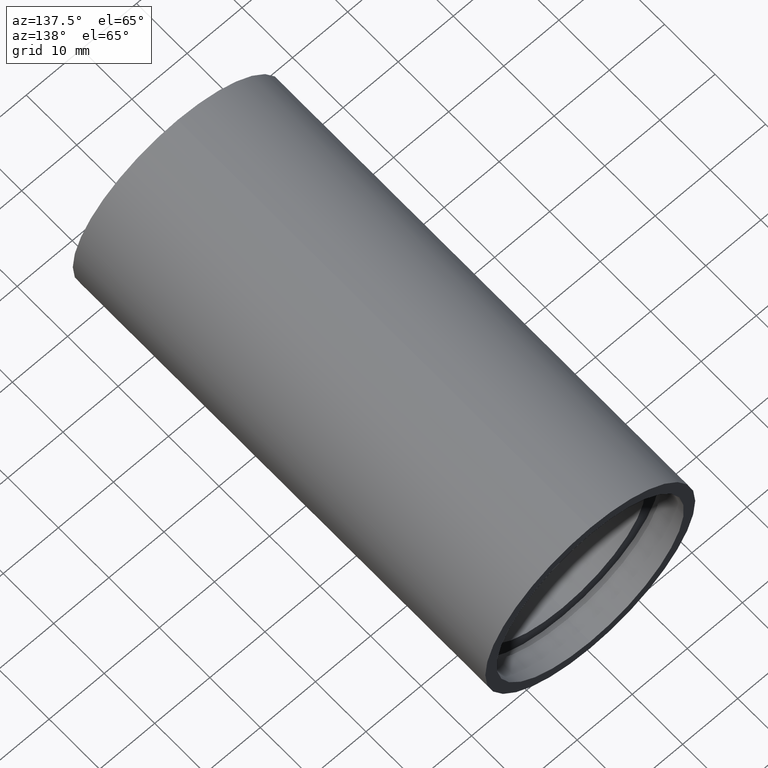
[diagram: clean part render]
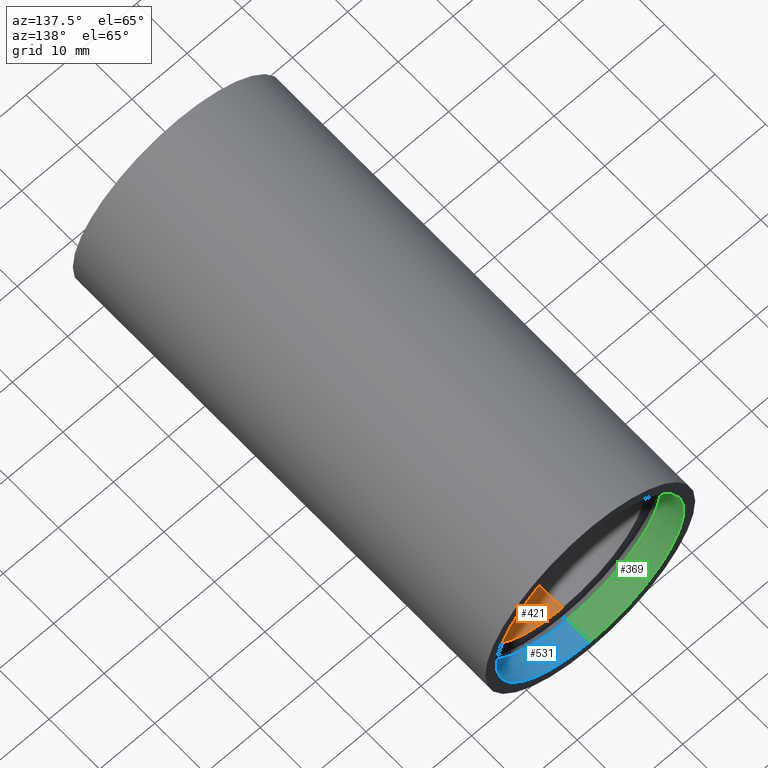
[diagram: same view with three faces highlighted in distinct colors, each labeled with its STEP entity id]
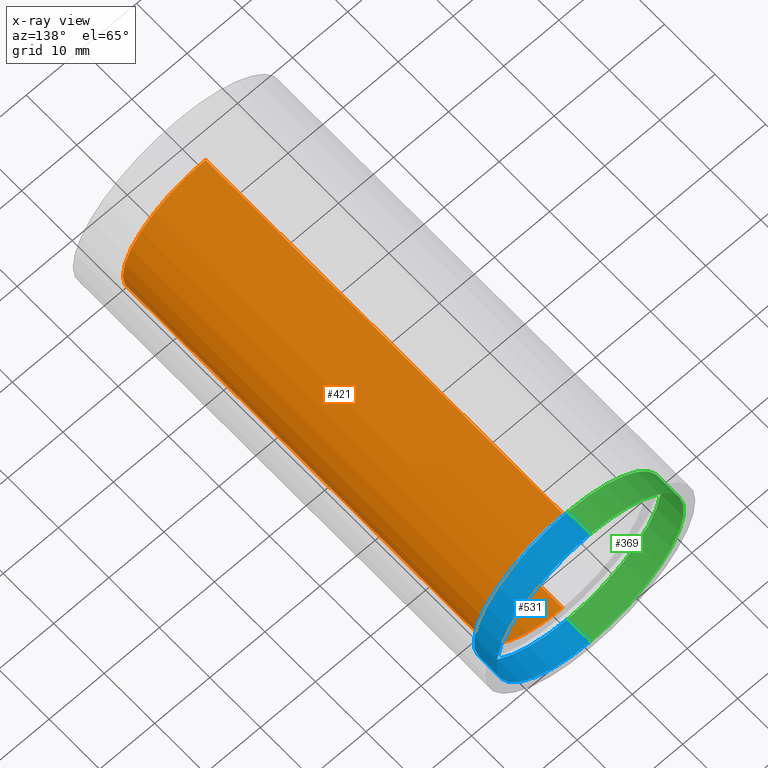
[diagram: x-ray of the same camera — body ghosted, the three highlighted faces saturated]
A machine part, auxiliary view with three faces highlighted in distinct colors.
The next image is the same camera in x-ray (body ghosted, the three faces saturated) — at least one of them is partly hidden behind the body in this view.
Their STEP definitions:

[orange] entity #421 — the highlighted cylindrical surface (partial cylindrical patch) has radius 15 mm, axis along (-0, 1, -0).
#4 = EDGE_CURVE ( 'NONE', #95, #38, #27, .T. ) ;
#24 = AXIS2_PLACEMENT_3D ( 'NONE', #261, #545, #540 ) ;
#26 = CARTESIAN_POINT ( 'NONE',  ( 1.836970198721032000E-015, 5.499999999999976900, -15.00000000000001800 ) ) ;
#27 = LINE ( 'NONE', #420, #32 ) ;
#29 = CARTESIAN_POINT ( 'NONE',  ( 0.0000000000000000000, 161.3761669434274500, 0.0000000000000000000 ) ) ;
#32 = VECTOR ( 'NONE', #619, 1000.000000000000000 ) ;
#38 = VERTEX_POINT ( 'NONE', #178 ) ;
#58 = CARTESIAN_POINT ( 'NONE',  ( 0.0000000000000000000, 5.499999999999976900, 15.00000000000001800 ) ) ;
#77 = AXIS2_PLACEMENT_3D ( 'NONE', #227, #457, #222 ) ;
#95 = VERTEX_POINT ( 'NONE', #58 ) ;
#120 = EDGE_LOOP ( 'NONE', ( #485, #350, #318, #296 ) ) ;
#144 = AXIS2_PLACEMENT_3D ( 'NONE', #29, #215, #560 ) ;
#171 = FACE_OUTER_BOUND ( 'NONE', #120, .T. ) ;
#178 = CARTESIAN_POINT ( 'NONE',  ( 0.0000000000000000000, 76.19999999999998900, 15.00000000000002000 ) ) ;
#196 = EDGE_CURVE ( 'NONE', #416, #516, #392, .T. ) ;
#215 = DIRECTION ( 'NONE',  ( -0.0000000000000000000, 1.000000000000000000, -0.0000000000000000000 ) ) ;
#222 = DIRECTION ( 'NONE',  ( 0.0000000000000000000, 0.0000000000000000000, 1.000000000000000000 ) ) ;
#227 = CARTESIAN_POINT ( 'NONE',  ( 0.0000000000000000000, 5.499999999999976900, 0.0000000000000000000 ) ) ;
#246 = DIRECTION ( 'NONE',  ( -0.0000000000000000000, 1.000000000000000000, -0.0000000000000000000 ) ) ;
#251 = EDGE_CURVE ( 'NONE', #38, #516, #581, .T. ) ;
#261 = CARTESIAN_POINT ( 'NONE',  ( 0.0000000000000000000, 76.19999999999998900, 0.0000000000000000000 ) ) ;
#296 = ORIENTED_EDGE ( 'NONE', *, *, #251, .T. ) ;
#318 = ORIENTED_EDGE ( 'NONE', *, *, #4, .T. ) ;
#350 = ORIENTED_EDGE ( 'NONE', *, *, #503, .F. ) ;
#373 = CIRCLE ( 'NONE', #77, 15.00000000000001800 ) ;
#392 = LINE ( 'NONE', #533, #504 ) ;
#416 = VERTEX_POINT ( 'NONE', #26 ) ;
#419 = CARTESIAN_POINT ( 'NONE',  ( 1.836970198721032300E-015, 76.19999999999998900, -15.00000000000002000 ) ) ;
#420 = CARTESIAN_POINT ( 'NONE',  ( 0.0000000000000000000, 161.3761669434274500, 15.00000000000002000 ) ) ;
#421 = ADVANCED_FACE ( 'NONE', ( #171 ), #555, .F. ) ;
#457 = DIRECTION ( 'NONE',  ( -0.0000000000000000000, 1.000000000000000000, -0.0000000000000000000 ) ) ;
#485 = ORIENTED_EDGE ( 'NONE', *, *, #196, .F. ) ;
#503 = EDGE_CURVE ( 'NONE', #95, #416, #373, .T. ) ;
#504 = VECTOR ( 'NONE', #246, 1000.000000000000000 ) ;
#516 = VERTEX_POINT ( 'NONE', #419 ) ;
#533 = CARTESIAN_POINT ( 'NONE',  ( 1.836970198721032300E-015, 161.3761669434274500, -15.00000000000002000 ) ) ;
#540 = DIRECTION ( 'NONE',  ( 0.0000000000000000000, 0.0000000000000000000, 1.000000000000000000 ) ) ;
#545 = DIRECTION ( 'NONE',  ( -0.0000000000000000000, 1.000000000000000000, -0.0000000000000000000 ) ) ;
#555 = CYLINDRICAL_SURFACE ( 'NONE', #144, 15.00000000000002000 ) ;
#560 = DIRECTION ( 'NONE',  ( 0.0000000000000000000, 0.0000000000000000000, 1.000000000000000000 ) ) ;
#581 = CIRCLE ( 'NONE', #24, 15.00000000000002000 ) ;
#619 = DIRECTION ( 'NONE',  ( -0.0000000000000000000, 1.000000000000000000, -0.0000000000000000000 ) ) ;

[blue] entity #531 — the highlighted cylindrical surface (partial cylindrical patch) has radius 17 mm, axis along (-0, 1, -0).
#44 = DIRECTION ( 'NONE',  ( 0.0000000000000000000, 0.0000000000000000000, 1.000000000000000000 ) ) ;
#78 = CYLINDRICAL_SURFACE ( 'NONE', #535, 17.00000000000002100 ) ;
#79 = DIRECTION ( 'NONE',  ( -0.0000000000000000000, 1.000000000000000000, -0.0000000000000000000 ) ) ;
#80 = VECTOR ( 'NONE', #132, 1000.000000000000000 ) ;
#97 = EDGE_CURVE ( 'NONE', #437, #486, #109, .T. ) ;
#109 = LINE ( 'NONE', #339, #474 ) ;
#110 = DIRECTION ( 'NONE',  ( -0.0000000000000000000, 1.000000000000000000, -0.0000000000000000000 ) ) ;
#126 = CARTESIAN_POINT ( 'NONE',  ( 0.0000000000000000000, 81.69999999999998900, 17.00000000000002100 ) ) ;
#132 = DIRECTION ( 'NONE',  ( -0.0000000000000000000, 1.000000000000000000, -0.0000000000000000000 ) ) ;
#143 = CIRCLE ( 'NONE', #462, 17.00000000000002100 ) ;
#153 = ORIENTED_EDGE ( 'NONE', *, *, #621, .F. ) ;
#166 = ORIENTED_EDGE ( 'NONE', *, *, #97, .T. ) ;
#200 = CARTESIAN_POINT ( 'NONE',  ( 2.081899558550503000E-015, 81.69999999999998900, -17.00000000000002100 ) ) ;
#202 = ORIENTED_EDGE ( 'NONE', *, *, #494, .T. ) ;
#236 = CARTESIAN_POINT ( 'NONE',  ( 0.0000000000000000000, 161.3761669434274500, 0.0000000000000000000 ) ) ;
#243 = FACE_OUTER_BOUND ( 'NONE', #362, .T. ) ;
#248 = VERTEX_POINT ( 'NONE', #200 ) ;
#260 = CARTESIAN_POINT ( 'NONE',  ( 0.0000000000000000000, 77.19999999999998900, 0.0000000000000000000 ) ) ;
#339 = CARTESIAN_POINT ( 'NONE',  ( 0.0000000000000000000, 161.3761669434274500, 17.00000000000002100 ) ) ;
#353 = DIRECTION ( 'NONE',  ( 0.0000000000000000000, 0.0000000000000000000, 1.000000000000000000 ) ) ;
#362 = EDGE_LOOP ( 'NONE', ( #611, #153, #166, #202 ) ) ;
#412 = CARTESIAN_POINT ( 'NONE',  ( 0.0000000000000000000, 77.19999999999998900, 17.00000000000002100 ) ) ;
#432 = CIRCLE ( 'NONE', #511, 17.00000000000002100 ) ;
#437 = VERTEX_POINT ( 'NONE', #412 ) ;
#459 = VERTEX_POINT ( 'NONE', #461 ) ;
#461 = CARTESIAN_POINT ( 'NONE',  ( 2.081899558550503000E-015, 77.19999999999998900, -17.00000000000002100 ) ) ;
#462 = AXIS2_PLACEMENT_3D ( 'NONE', #518, #79, #463 ) ;
#463 = DIRECTION ( 'NONE',  ( 0.0000000000000000000, 0.0000000000000000000, 1.000000000000000000 ) ) ;
#474 = VECTOR ( 'NONE', #480, 1000.000000000000000 ) ;
#480 = DIRECTION ( 'NONE',  ( -0.0000000000000000000, 1.000000000000000000, -0.0000000000000000000 ) ) ;
#482 = EDGE_CURVE ( 'NONE', #459, #248, #537, .T. ) ;
#486 = VERTEX_POINT ( 'NONE', #126 ) ;
#494 = EDGE_CURVE ( 'NONE', #486, #248, #143, .T. ) ;
#511 = AXIS2_PLACEMENT_3D ( 'NONE', #260, #110, #353 ) ;
#513 = CARTESIAN_POINT ( 'NONE',  ( 2.081899558550503000E-015, 161.3761669434274500, -17.00000000000002100 ) ) ;
#518 = CARTESIAN_POINT ( 'NONE',  ( 0.0000000000000000000, 81.69999999999998900, 0.0000000000000000000 ) ) ;
#527 = DIRECTION ( 'NONE',  ( -0.0000000000000000000, 1.000000000000000000, -0.0000000000000000000 ) ) ;
#531 = ADVANCED_FACE ( 'NONE', ( #243 ), #78, .F. ) ;
#535 = AXIS2_PLACEMENT_3D ( 'NONE', #236, #527, #44 ) ;
#537 = LINE ( 'NONE', #513, #80 ) ;
#611 = ORIENTED_EDGE ( 'NONE', *, *, #482, .F. ) ;
#621 = EDGE_CURVE ( 'NONE', #437, #459, #432, .T. ) ;

[green] entity #369 — the highlighted cylindrical surface (partial cylindrical patch) has radius 17 mm, axis along (-0, 1, -0).
#76 = EDGE_LOOP ( 'NONE', ( #265, #617, #324, #214 ) ) ;
#80 = VECTOR ( 'NONE', #132, 1000.000000000000000 ) ;
#97 = EDGE_CURVE ( 'NONE', #437, #486, #109, .T. ) ;
#109 = LINE ( 'NONE', #339, #474 ) ;
#116 = AXIS2_PLACEMENT_3D ( 'NONE', #161, #490, #342 ) ;
#126 = CARTESIAN_POINT ( 'NONE',  ( 0.0000000000000000000, 81.69999999999998900, 17.00000000000002100 ) ) ;
#132 = DIRECTION ( 'NONE',  ( -0.0000000000000000000, 1.000000000000000000, -0.0000000000000000000 ) ) ;
#161 = CARTESIAN_POINT ( 'NONE',  ( 0.0000000000000000000, 81.69999999999998900, 0.0000000000000000000 ) ) ;
#200 = CARTESIAN_POINT ( 'NONE',  ( 2.081899558550503000E-015, 81.69999999999998900, -17.00000000000002100 ) ) ;
#214 = ORIENTED_EDGE ( 'NONE', *, *, #97, .F. ) ;
#248 = VERTEX_POINT ( 'NONE', #200 ) ;
#264 = CIRCLE ( 'NONE', #116, 17.00000000000002100 ) ;
#265 = ORIENTED_EDGE ( 'NONE', *, *, #418, .F. ) ;
#293 = EDGE_CURVE ( 'NONE', #248, #486, #264, .T. ) ;
#310 = DIRECTION ( 'NONE',  ( 0.0000000000000000000, 0.0000000000000000000, 1.000000000000000000 ) ) ;
#312 = DIRECTION ( 'NONE',  ( -0.0000000000000000000, 1.000000000000000000, -0.0000000000000000000 ) ) ;
#324 = ORIENTED_EDGE ( 'NONE', *, *, #293, .T. ) ;
#338 = AXIS2_PLACEMENT_3D ( 'NONE', #603, #312, #556 ) ;
#339 = CARTESIAN_POINT ( 'NONE',  ( 0.0000000000000000000, 161.3761669434274500, 17.00000000000002100 ) ) ;
#342 = DIRECTION ( 'NONE',  ( 0.0000000000000000000, 0.0000000000000000000, 1.000000000000000000 ) ) ;
#367 = AXIS2_PLACEMENT_3D ( 'NONE', #563, #453, #310 ) ;
#369 = ADVANCED_FACE ( 'NONE', ( #570 ), #495, .F. ) ;
#412 = CARTESIAN_POINT ( 'NONE',  ( 0.0000000000000000000, 77.19999999999998900, 17.00000000000002100 ) ) ;
#418 = EDGE_CURVE ( 'NONE', #459, #437, #564, .T. ) ;
#437 = VERTEX_POINT ( 'NONE', #412 ) ;
#453 = DIRECTION ( 'NONE',  ( -0.0000000000000000000, 1.000000000000000000, -0.0000000000000000000 ) ) ;
#459 = VERTEX_POINT ( 'NONE', #461 ) ;
#461 = CARTESIAN_POINT ( 'NONE',  ( 2.081899558550503000E-015, 77.19999999999998900, -17.00000000000002100 ) ) ;
#474 = VECTOR ( 'NONE', #480, 1000.000000000000000 ) ;
#480 = DIRECTION ( 'NONE',  ( -0.0000000000000000000, 1.000000000000000000, -0.0000000000000000000 ) ) ;
#482 = EDGE_CURVE ( 'NONE', #459, #248, #537, .T. ) ;
#486 = VERTEX_POINT ( 'NONE', #126 ) ;
#490 = DIRECTION ( 'NONE',  ( -0.0000000000000000000, 1.000000000000000000, -0.0000000000000000000 ) ) ;
#495 = CYLINDRICAL_SURFACE ( 'NONE', #338, 17.00000000000002100 ) ;
#513 = CARTESIAN_POINT ( 'NONE',  ( 2.081899558550503000E-015, 161.3761669434274500, -17.00000000000002100 ) ) ;
#537 = LINE ( 'NONE', #513, #80 ) ;
#556 = DIRECTION ( 'NONE',  ( 0.0000000000000000000, 0.0000000000000000000, 1.000000000000000000 ) ) ;
#563 = CARTESIAN_POINT ( 'NONE',  ( 0.0000000000000000000, 77.19999999999998900, 0.0000000000000000000 ) ) ;
#564 = CIRCLE ( 'NONE', #367, 17.00000000000002100 ) ;
#570 = FACE_OUTER_BOUND ( 'NONE', #76, .T. ) ;
#603 = CARTESIAN_POINT ( 'NONE',  ( 0.0000000000000000000, 161.3761669434274500, 0.0000000000000000000 ) ) ;
#617 = ORIENTED_EDGE ( 'NONE', *, *, #482, .T. ) ;